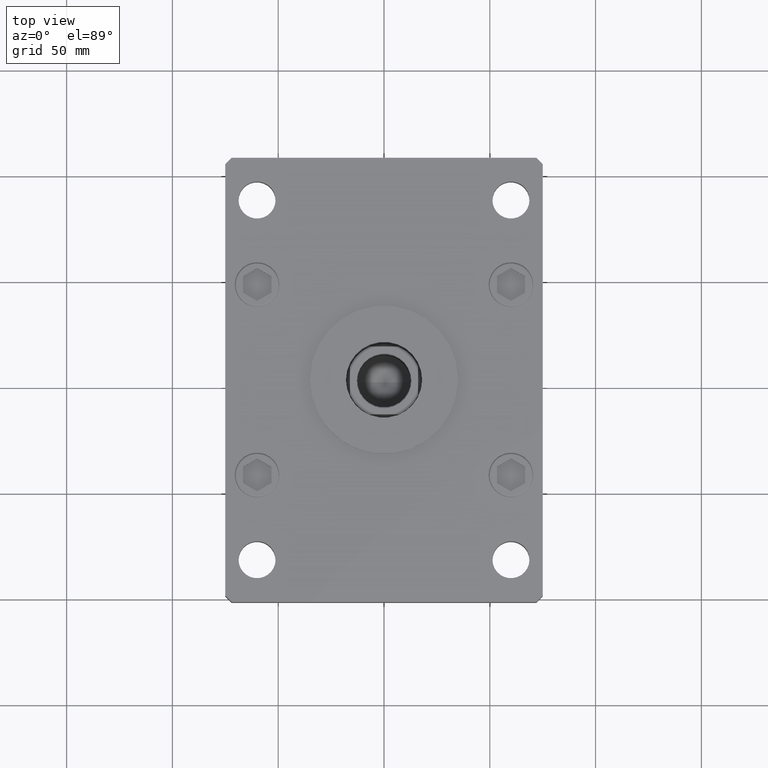
[diagram: clean part render]
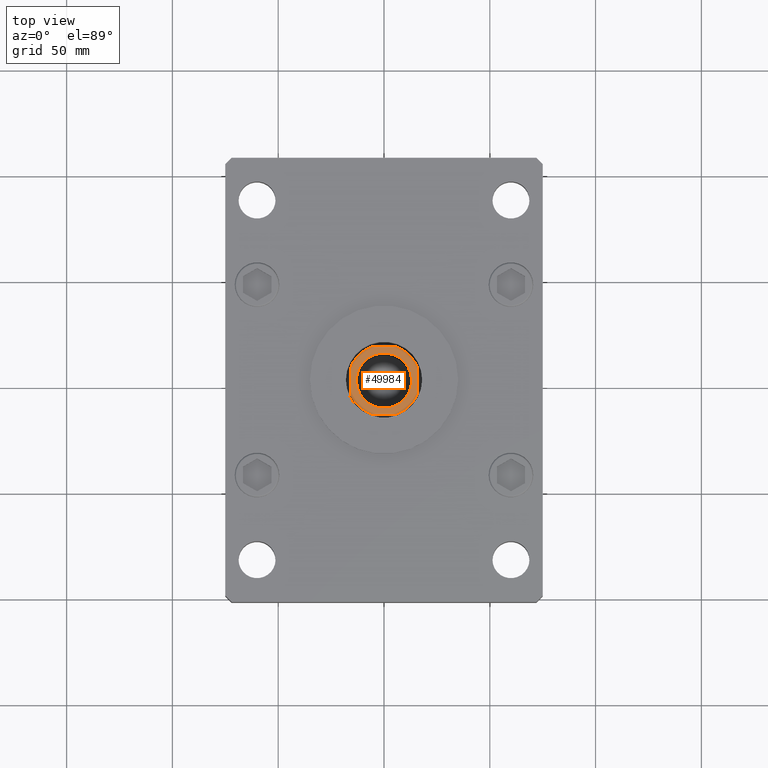
[diagram: same view with one face highlighted and labeled with its STEP entity id]
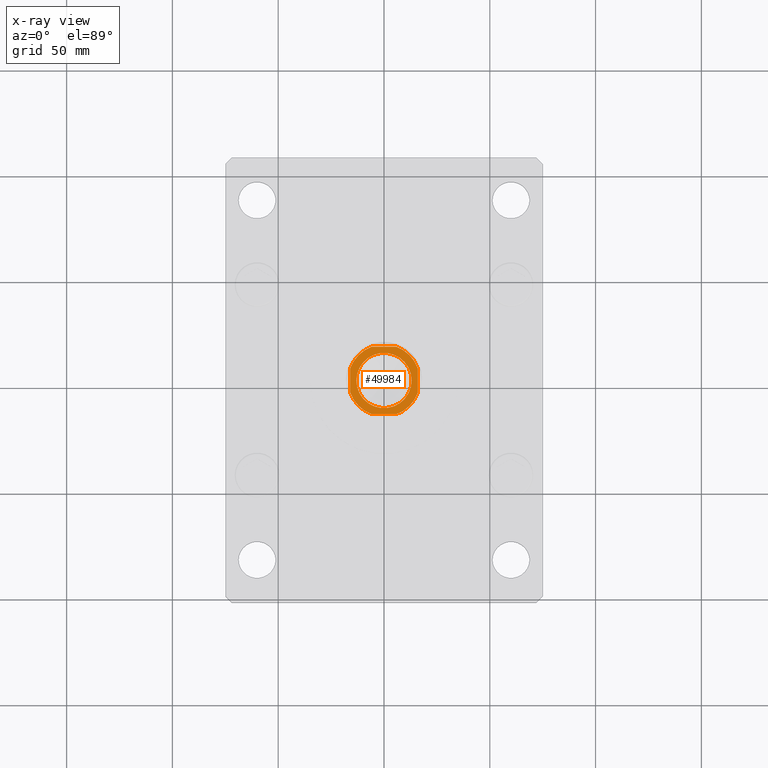
[diagram: x-ray of the same camera — body ghosted, the highlighted face saturated]
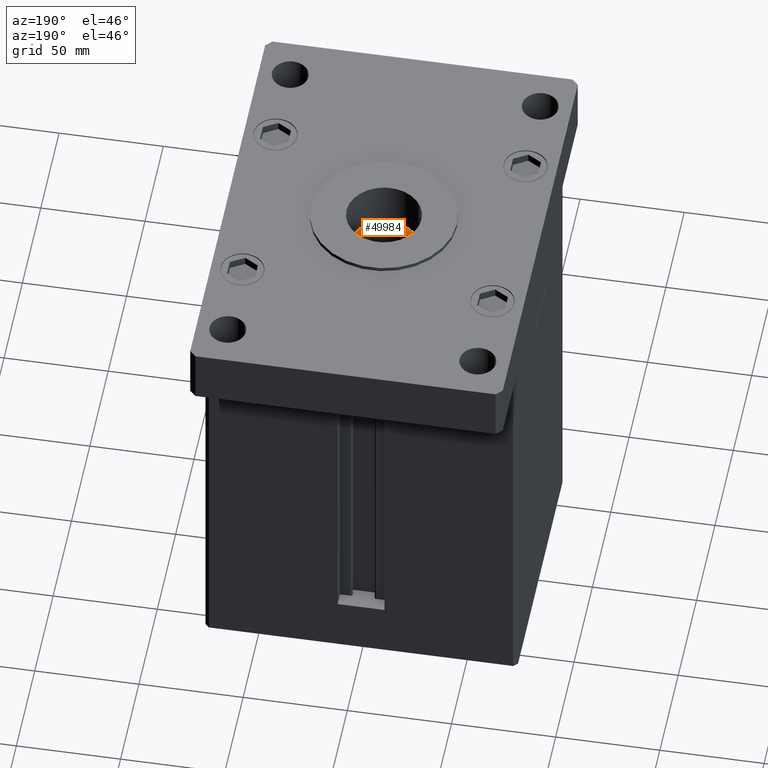
[diagram: same view with one face highlighted and labeled with its STEP entity id]
A machine part, top view. The second image highlights one B-rep face of the part: STEP entity #49984.
The next image is the same camera in x-ray: the body ghosted, the highlighted face saturated — about 0% of this face is hidden behind the body in this view.
A second angle (auxiliary view) of the same face is appended — the face is thin or edge-on in the first view.
In plain terms, the highlighted planar face has unit normal (0, 0, 1).
Its self-contained STEP definition (entity closure, byte-faithful):
#219 = ORIENTED_EDGE ( 'NONE', *, *, #7031, .T. ) ;
#572 = ORIENTED_EDGE ( 'NONE', *, *, #4599, .T. ) ;
#820 = ORIENTED_EDGE ( 'NONE', *, *, #38023, .T. ) ;
#975 = AXIS2_PLACEMENT_3D ( 'NONE', #27942, #23908, #8035 ) ;
#1076 = DIRECTION ( 'NONE',  ( 1.000000000000000000, 0.000000000000000000, 0.000000000000000000 ) ) ;
#1103 = VERTEX_POINT ( 'NONE', #13298 ) ;
#1109 = VERTEX_POINT ( 'NONE', #8991 ) ;
#1921 = VERTEX_POINT ( 'NONE', #38068 ) ;
#2012 = CARTESIAN_POINT ( 'NONE',  ( -15.99999999999999645, -16.00000000000000355, 173.0000000000000284 ) ) ;
#4224 = EDGE_CURVE ( 'NONE', #27372, #39368, #24053, .T. ) ;
#4599 = EDGE_CURVE ( 'NONE', #1921, #16811, #26886, .T. ) ;
#4651 = DIRECTION ( 'NONE',  ( 1.000000000000000000, 0.000000000000000000, 0.000000000000000000 ) ) ;
#5335 = AXIS2_PLACEMENT_3D ( 'NONE', #37221, #20821, #4651 ) ;
#5975 = DIRECTION ( 'NONE',  ( -0.000000000000000000, 0.000000000000000000, 1.000000000000000000 ) ) ;
#6560 = CIRCLE ( 'NONE', #16847, 13.04999999999997584 ) ;
#6845 = EDGE_CURVE ( 'NONE', #16811, #1103, #40507, .T. ) ;
#7031 = EDGE_CURVE ( 'NONE', #36762, #26986, #43107, .T. ) ;
#7873 = EDGE_CURVE ( 'NONE', #1109, #46164, #45701, .T. ) ;
#8035 = DIRECTION ( 'NONE',  ( 1.000000000000000000, 0.000000000000000000, 0.000000000000000000 ) ) ;
#8991 = CARTESIAN_POINT ( 'NONE',  ( -13.04999999999997584, 1.598164072887293013E-15, 173.0000000000000284 ) ) ;
#9211 = ORIENTED_EDGE ( 'NONE', *, *, #7873, .T. ) ;
#9524 = VECTOR ( 'NONE', #31976, 1000.000000000000000 ) ;
#9552 = DIRECTION ( 'NONE',  ( 1.000000000000000000, 0.000000000000000000, 0.000000000000000000 ) ) ;
#9715 = DIRECTION ( 'NONE',  ( -0.000000000000000000, 0.000000000000000000, 1.000000000000000000 ) ) ;
#9744 = EDGE_CURVE ( 'NONE', #41143, #1921, #33729, .T. ) ;
#11363 = CARTESIAN_POINT ( 'NONE',  ( 16.00000000000000000, 16.00000000000000000, 173.0000000000000284 ) ) ;
#11669 = DIRECTION ( 'NONE',  ( 1.000000000000000000, 0.000000000000000000, 0.000000000000000000 ) ) ;
#11986 = ORIENTED_EDGE ( 'NONE', *, *, #9744, .T. ) ;
#12359 = ORIENTED_EDGE ( 'NONE', *, *, #4224, .T. ) ;
#13298 = CARTESIAN_POINT ( 'NONE',  ( -5.744562646538029504, -16.00000000000000355, 173.0000000000000284 ) ) ;
#14041 = ORIENTED_EDGE ( 'NONE', *, *, #26791, .T. ) ;
#14847 = DIRECTION ( 'NONE',  ( 1.000000000000000000, 0.000000000000000000, 0.000000000000000000 ) ) ;
#15510 = CARTESIAN_POINT ( 'NONE',  ( 0.000000000000000000, 0.000000000000000000, 173.0000000000000284 ) ) ;
#15995 = AXIS2_PLACEMENT_3D ( 'NONE', #43369, #5975, #14847 ) ;
#16304 = CARTESIAN_POINT ( 'NONE',  ( 5.744562646538024175, -16.00000000000000355, 173.0000000000000284 ) ) ;
#16476 = ORIENTED_EDGE ( 'NONE', *, *, #6845, .T. ) ;
#16811 = VERTEX_POINT ( 'NONE', #49467 ) ;
#16847 = AXIS2_PLACEMENT_3D ( 'NONE', #15510, #48330, #27864 ) ;
#20821 = DIRECTION ( 'NONE',  ( -0.000000000000000000, 0.000000000000000000, 1.000000000000000000 ) ) ;
#21934 = EDGE_LOOP ( 'NONE', ( #31290, #9211 ) ) ;
#22523 = AXIS2_PLACEMENT_3D ( 'NONE', #35640, #48273, #11669 ) ;
#22653 = FACE_BOUND ( 'NONE', #21934, .T. ) ;
#23213 = CARTESIAN_POINT ( 'NONE',  ( 13.04999999999997584, 0.000000000000000000, 173.0000000000000284 ) ) ;
#23254 = DIRECTION ( 'NONE',  ( 1.000000000000000000, 1.084202172485504434E-16, 0.000000000000000000 ) ) ;
#23389 = LINE ( 'NONE', #39805, #9524 ) ;
#23908 = DIRECTION ( 'NONE',  ( -0.000000000000000000, 0.000000000000000000, 1.000000000000000000 ) ) ;
#24053 = CIRCLE ( 'NONE', #52451, 17.00000000000000000 ) ;
#25103 = CARTESIAN_POINT ( 'NONE',  ( 5.744562646538033057, 16.00000000000000000, 173.0000000000000284 ) ) ;
#25814 = CARTESIAN_POINT ( 'NONE',  ( -16.00000000000000000, 15.99999999999999645, 173.0000000000000284 ) ) ;
#26791 = EDGE_CURVE ( 'NONE', #1103, #27372, #38895, .T. ) ;
#26886 = LINE ( 'NONE', #25814, #48997 ) ;
#26986 = VERTEX_POINT ( 'NONE', #25103 ) ;
#27372 = VERTEX_POINT ( 'NONE', #16304 ) ;
#27864 = DIRECTION ( 'NONE',  ( 1.000000000000000000, 0.000000000000000000, 0.000000000000000000 ) ) ;
#27942 = CARTESIAN_POINT ( 'NONE',  ( 0.000000000000000000, 0.000000000000000000, 173.0000000000000284 ) ) ;
#29148 = EDGE_CURVE ( 'NONE', #26986, #41143, #23389, .T. ) ;
#29518 = VECTOR ( 'NONE', #44457, 1000.000000000000000 ) ;
#30266 = DIRECTION ( 'NONE',  ( -0.000000000000000000, 0.000000000000000000, 1.000000000000000000 ) ) ;
#30670 = DIRECTION ( 'NONE',  ( 1.084202172485504434E-16, -1.000000000000000000, 0.000000000000000000 ) ) ;
#31290 = ORIENTED_EDGE ( 'NONE', *, *, #49554, .T. ) ;
#31976 = DIRECTION ( 'NONE',  ( -1.000000000000000000, -1.084202172485504434E-16, -0.000000000000000000 ) ) ;
#33729 = CIRCLE ( 'NONE', #5335, 17.00000000000000000 ) ;
#34961 = CARTESIAN_POINT ( 'NONE',  ( 16.00000000000000355, -5.744562646538033057, 173.0000000000000284 ) ) ;
#35640 = CARTESIAN_POINT ( 'NONE',  ( 0.000000000000000000, 0.000000000000000000, 173.0000000000000284 ) ) ;
#36369 = LINE ( 'NONE', #11363, #29518 ) ;
#36762 = VERTEX_POINT ( 'NONE', #43691 ) ;
#37221 = CARTESIAN_POINT ( 'NONE',  ( 0.000000000000000000, 0.000000000000000000, 173.0000000000000284 ) ) ;
#37698 = CARTESIAN_POINT ( 'NONE',  ( 0.000000000000000000, 0.000000000000000000, 173.0000000000000284 ) ) ;
#38023 = EDGE_CURVE ( 'NONE', #39368, #36762, #36369, .T. ) ;
#38068 = CARTESIAN_POINT ( 'NONE',  ( -16.00000000000000000, 5.744562646538029504, 173.0000000000000284 ) ) ;
#38350 = CARTESIAN_POINT ( 'NONE',  ( 0.000000000000000000, 0.000000000000000000, 173.0000000000000284 ) ) ;
#38895 = LINE ( 'NONE', #2012, #49840 ) ;
#39368 = VERTEX_POINT ( 'NONE', #34961 ) ;
#39805 = CARTESIAN_POINT ( 'NONE',  ( -16.00000000000000000, 15.99999999999999645, 173.0000000000000284 ) ) ;
#40507 = CIRCLE ( 'NONE', #43944, 17.00000000000000000 ) ;
#41143 = VERTEX_POINT ( 'NONE', #47070 ) ;
#43107 = CIRCLE ( 'NONE', #975, 17.00000000000000000 ) ;
#43369 = CARTESIAN_POINT ( 'NONE',  ( 0.000000000000000000, 0.000000000000000000, 173.0000000000000284 ) ) ;
#43492 = ORIENTED_EDGE ( 'NONE', *, *, #29148, .T. ) ;
#43691 = CARTESIAN_POINT ( 'NONE',  ( 16.00000000000000000, 5.744562646538033945, 173.0000000000000284 ) ) ;
#43944 = AXIS2_PLACEMENT_3D ( 'NONE', #37698, #9715, #1076 ) ;
#44211 = EDGE_LOOP ( 'NONE', ( #572, #16476, #14041, #12359, #820, #219, #43492, #11986 ) ) ;
#44457 = DIRECTION ( 'NONE',  ( -1.084202172485504434E-16, 1.000000000000000000, -0.000000000000000000 ) ) ;
#45701 = CIRCLE ( 'NONE', #22523, 13.04999999999997584 ) ;
#46164 = VERTEX_POINT ( 'NONE', #23213 ) ;
#47070 = CARTESIAN_POINT ( 'NONE',  ( -5.744562646538033945, 16.00000000000000000, 173.0000000000000284 ) ) ;
#47661 = PLANE ( 'NONE',  #15995 ) ;
#48273 = DIRECTION ( 'NONE',  ( 0.000000000000000000, -0.000000000000000000, -1.000000000000000000 ) ) ;
#48330 = DIRECTION ( 'NONE',  ( 0.000000000000000000, -0.000000000000000000, -1.000000000000000000 ) ) ;
#48997 = VECTOR ( 'NONE', #30670, 1000.000000000000000 ) ;
#49467 = CARTESIAN_POINT ( 'NONE',  ( -16.00000000000000000, -5.744562646538033945, 173.0000000000000284 ) ) ;
#49554 = EDGE_CURVE ( 'NONE', #46164, #1109, #6560, .T. ) ;
#49840 = VECTOR ( 'NONE', #23254, 1000.000000000000000 ) ;
#49984 = ADVANCED_FACE ( 'NONE', ( #22653, #51697 ), #47661, .T. ) ;
#51697 = FACE_OUTER_BOUND ( 'NONE', #44211, .T. ) ;
#52451 = AXIS2_PLACEMENT_3D ( 'NONE', #38350, #30266, #9552 ) ;